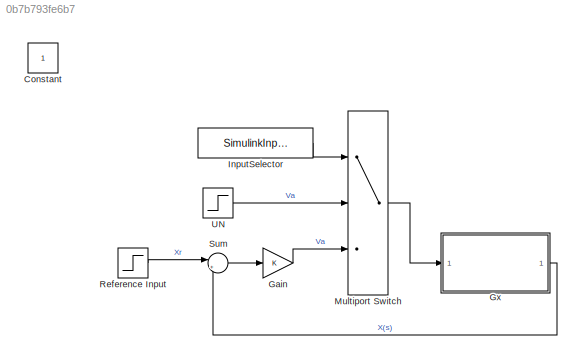
MODEL slx_0b7b793fe6b7
KIND model
BLOCK [Constant] Constant
  IOType = siggen
BLOCK [Gain] Gain
  Gain = K
  OutDataTypeStr = Inherit: Inherit via internal rule
  ParamDataTypeStr = Inherit: Inherit via internal rule
  SaturateOnIntegerOverflow = off
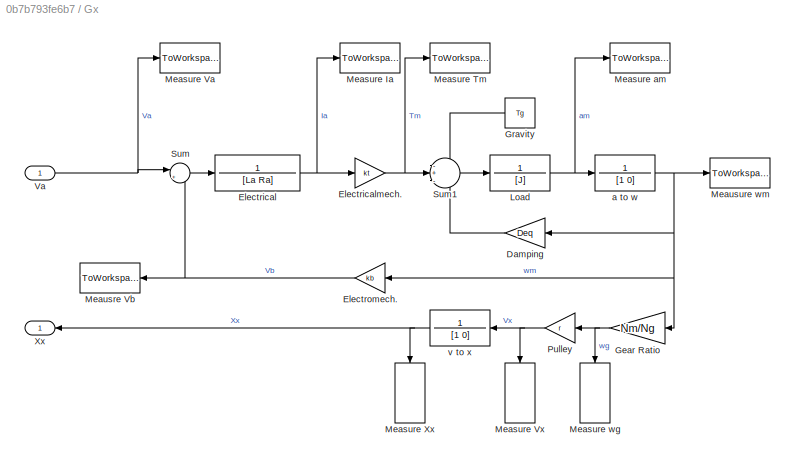
BLOCK [SubSystem] Gx
  FunctionWithSeparateData = off
  MaskHideContents = off
  MinAlgLoopOccurrences = off
  Opaque = off
  Ports = [1, 1]
  PropExecContextOutsideSubsystem = off
  RTWSystemCode = Auto
  RequestExecContextInheritance = off
BLOCK [Gain] Gx/Damping
  Gain = Deq
  OutDataTypeStr = Inherit: Inherit via internal rule
  ParamDataTypeStr = Inherit: Inherit via internal rule
  SaturateOnIntegerOverflow = off
BLOCK [TransferFcn] Gx/Electrical
  Denominator = [La Ra]
  Numerator = 1
BLOCK [Gain] Gx/Electricalmech. 
  Gain = kt
  OutDataTypeStr = Inherit: Inherit via internal rule
  ParamDataTypeStr = Inherit: Inherit via internal rule
  SaturateOnIntegerOverflow = off
BLOCK [Gain] Gx/Electromech.
  Gain = kb
  OutDataTypeStr = Inherit: Inherit via internal rule
  ParamDataTypeStr = Inherit: Inherit via internal rule
  SaturateOnIntegerOverflow = off
BLOCK [Gain] Gx/Gear Ratio
  Gain = Nm/Ng
  OutDataTypeStr = Inherit: Inherit via internal rule
  ParamDataTypeStr = Inherit: Inherit via internal rule
  SaturateOnIntegerOverflow = off
BLOCK [Constant] Gx/Gravity
  Value = Tg
BLOCK [TransferFcn] Gx/Load
  Denominator = [J]
  Numerator = 1
BLOCK [ToWorkspace] Gx/Measure Ia
  MaxDataPoints = inf
  Ports = [1]
  SampleTime = -1
  VariableName = Ia
BLOCK [ToWorkspace] Gx/Measure Tm
  MaxDataPoints = inf
  Ports = [1]
  SampleTime = -1
  VariableName = Tm
BLOCK [ToWorkspace] Gx/Measure Va
  MaxDataPoints = inf
  Ports = [1]
  SampleTime = -1
  VariableName = Va
BLOCK [ToWorkspace] Gx/Measure Vx
  MaxDataPoints = inf
  Ports = [1]
  SampleTime = -1
  VariableName = Vx
BLOCK [ToWorkspace] Gx/Measure Xx
  MaxDataPoints = inf
  Ports = [1]
  SampleTime = -1
  VariableName = Xx
BLOCK [ToWorkspace] Gx/Measure am
  MaxDataPoints = inf
  Ports = [1]
  SampleTime = -1
  VariableName = am
BLOCK [ToWorkspace] Gx/Measure wg
  MaxDataPoints = inf
  Ports = [1]
  SampleTime = -1
  VariableName = Wg
BLOCK [ToWorkspace] Gx/Meausre Vb
  MaxDataPoints = inf
  Ports = [1]
  SampleTime = -1
  VariableName = Vb
BLOCK [ToWorkspace] Gx/Meausure wm
  MaxDataPoints = inf
  Ports = [1]
  SampleTime = -1
  VariableName = Wm
BLOCK [Gain] Gx/Pulley
  Gain = r
  OutDataTypeStr = Inherit: Inherit via internal rule
  ParamDataTypeStr = Inherit: Inherit via internal rule
  SaturateOnIntegerOverflow = off
BLOCK [Sum] Gx/Sum
  IconShape = round
  InputSameDT = off
  Inputs = |+-
  OutDataTypeStr = Inherit: Inherit via internal rule
  Ports = [2, 1]
  SaturateOnIntegerOverflow = off
BLOCK [Sum] Gx/Sum1
  IconShape = round
  InputSameDT = off
  Inputs = -+-
  OutDataTypeStr = Inherit: Inherit via internal rule
  Ports = [3, 1]
  SaturateOnIntegerOverflow = off
BLOCK [Inport] Gx/Va
  IconDisplay = Port number
BLOCK [Outport] Gx/Xx
  IconDisplay = Port number
BLOCK [TransferFcn] Gx/a to w
  Denominator = [1 0]
  Numerator = 1
BLOCK [TransferFcn] Gx/v to x
  Denominator = [1 0]
  Numerator = 1
BLOCK [Constant] InputSelector
  Value = SimulinkInputSelector
BLOCK [MultiPortSwitch] Multiport Switch
  InputSameDT = off
  Inputs = 2
  Ports = [3, 1]
  SaturateOnIntegerOverflow = off
BLOCK [Step] Reference Input
  After = Height
  SampleTime = Time.Step
  Time = 0
BLOCK [Sum] Sum
  IconShape = round
  InputSameDT = off
  Inputs = |+-
  OutDataTypeStr = Inherit: Inherit via internal rule
  Ports = [2, 1]
  SaturateOnIntegerOverflow = off
BLOCK [Step] UN
  After = UN
  SampleTime = Time.Step
  Time = 0
LINE Gain:1 -> Multiport Switch:3
LINE Gx/Damping:1 -> Gx/Sum1:3
NET Gx/Electrical:1 -> Gx/Electricalmech. :1, Gx/Measure Ia:1
NET Gx/Electricalmech. :1 -> Gx/Measure Tm:1, Gx/Sum1:2
NET Gx/Electromech.:1 -> Gx/Meausre Vb:1, Gx/Sum:2
NET Gx/Gear Ratio:1 -> Gx/Measure wg:1, Gx/Pulley:1
LINE Gx/Gravity:1 -> Gx/Sum1:1
NET Gx/Load:1 -> Gx/Measure am:1, Gx/a to w:1
NET Gx/Pulley:1 -> Gx/Measure Vx:1, Gx/v to x:1
LINE Gx/Sum1:1 -> Gx/Load:1
LINE Gx/Sum:1 -> Gx/Electrical:1
NET Gx/Va:1 -> Gx/Measure Va:1, Gx/Sum:1
NET Gx/a to w:1 -> Gx/Damping:1, Gx/Electromech.:1, Gx/Gear Ratio:1, Gx/Meausure wm:1
NET Gx/v to x:1 -> Gx/Measure Xx:1, Gx/Xx:1
LINE Gx:1 -> Sum:2
LINE InputSelector:1 -> Multiport Switch:1
LINE Multiport Switch:1 -> Gx:1
LINE Reference Input:1 -> Sum:1
LINE Sum:1 -> Gain:1
LINE UN:1 -> Multiport Switch:2
note: NET lines group one-source signal fan-out (src -> all destinations, sorted); 1:1 wires keep LINE
